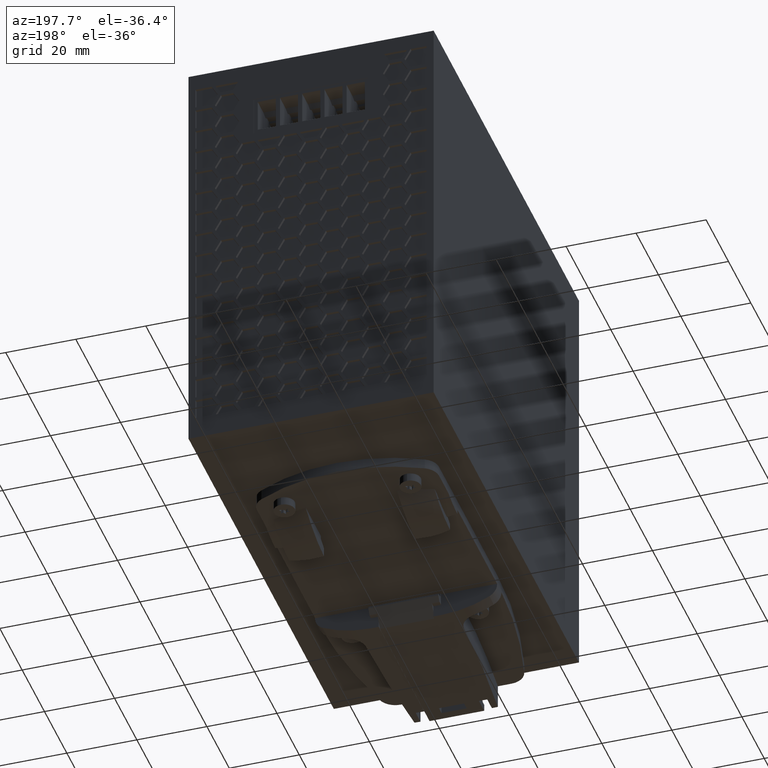
[diagram: clean part render]
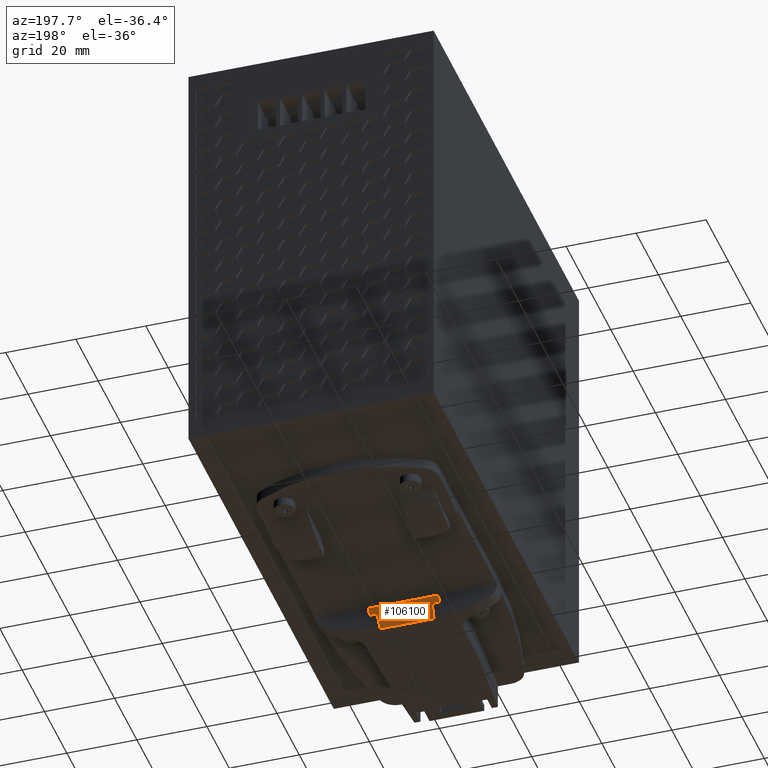
[diagram: same view with one face highlighted and labeled with its STEP entity id]
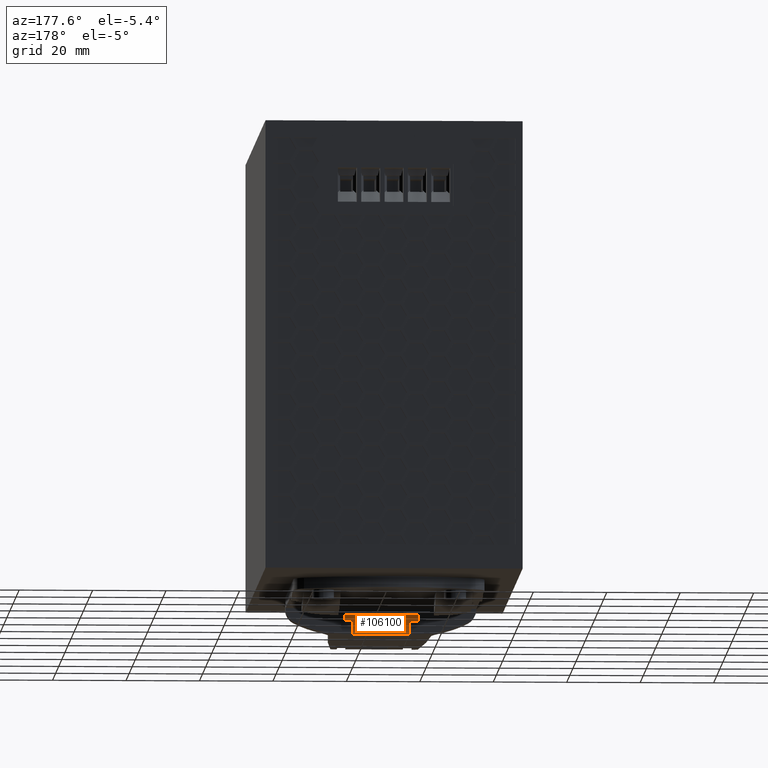
[diagram: same view with one face highlighted and labeled with its STEP entity id]
A machine part, auxiliary view. The second image highlights one B-rep face of the part: STEP entity #106100.
A second angle (auxiliary view) of the same face is appended — the face is thin or edge-on in the first view.
In plain terms, the highlighted planar face has unit normal (-0, 0.8059, -0.5921).
Its self-contained STEP definition (entity closure, byte-faithful):
#84610=CARTESIAN_POINT('',(27.2,-9.80000000000832,85.1992150856017));
#84620=VERTEX_POINT('',#84610);
#84650=CARTESIAN_POINT('',(27.2,0.,77.9992150855951));
#84660=DIRECTION('',(0.,0.805881812890923,-0.592076433960717));
#84670=VECTOR('',#84660,1.);
#84680=LINE('',#84650,#84670);
#84690=CARTESIAN_POINT('',(27.2,-8.29955848486365,84.0968498908014));
#84700=VERTEX_POINT('',#84690);
#84710=EDGE_CURVE('',#84620,#84700,#84680,.T.);
#100330=CARTESIAN_POINT('',(42.8,0.,77.9992150855951));
#100340=DIRECTION('',(0.,-0.805881812890923,0.592076433960717));
#100350=VECTOR('',#100340,1.);
#100360=LINE('',#100330,#100350);
#100370=CARTESIAN_POINT('',(42.8,-8.29955848486361,84.0968498908014));
#100380=VERTEX_POINT('',#100370);
#100390=CARTESIAN_POINT('',(42.8,-9.80000000000832,85.1992150856017));
#100400=VERTEX_POINT('',#100390);
#100410=EDGE_CURVE('',#100380,#100400,#100360,.T.);
#100920=CARTESIAN_POINT('',(25.,-6.45000000000833,82.7379905958056));
#100930=VERTEX_POINT('',#100920);
#100980=CARTESIAN_POINT('',(25.,60.8249999999917,33.3114599835575));
#100990=DIRECTION('',(0.,0.805881812890923,-0.592076433960717));
#101000=VECTOR('',#100990,1.);
#101010=LINE('',#100980,#101000);
#101020=CARTESIAN_POINT('',(25.,-4.90000000000831,81.5992150856014));
#101030=VERTEX_POINT('',#101020);
#101040=EDGE_CURVE('',#100930,#101030,#101010,.T.);
#105500=CARTESIAN_POINT('',(31.3,-7.79236111111929,83.7242150856015));
#105510=DIRECTION('',(-3.28668444660572E-17,-0.592076433960717,
-0.805881812890923));
#105520=DIRECTION('',(0.,-0.805881812890923,0.592076433960717));
#105530=AXIS2_PLACEMENT_3D('',#105500,#105510,#105520);
#105540=PLANE('',#105530);
#105550=CARTESIAN_POINT('',(42.8,0.,77.9992150855951));
#105560=DIRECTION('',(0.,-0.805881812890923,0.592076433960717));
#105570=VECTOR('',#105560,1.);
#105580=LINE('',#105550,#105570);
#105590=CARTESIAN_POINT('',(42.8,-6.45000000000834,82.7379905958056));
#105600=VERTEX_POINT('',#105590);
#105610=EDGE_CURVE('',#105600,#100380,#105580,.T.);
#105620=ORIENTED_EDGE('',*,*,#105610,.T.);
#105630=CARTESIAN_POINT('',(-1.,-6.45000000000833,82.7379905958056));
#105640=DIRECTION('',(-1.,0.,4.07837029454166E-17));
#105650=VECTOR('',#105640,1.);
#105660=LINE('',#105630,#105650);
#105670=CARTESIAN_POINT('',(45.,-6.45000000000834,82.7379905958056));
#105680=VERTEX_POINT('',#105670);
#105690=EDGE_CURVE('',#105680,#105600,#105660,.T.);
#105700=ORIENTED_EDGE('',*,*,#105690,.T.);
#105710=CARTESIAN_POINT('',(45.,60.8249999999917,33.3114599835575));
#105720=DIRECTION('',(0.,-0.805881812890923,0.592076433960717));
#105730=VECTOR('',#105720,1.);
#105740=LINE('',#105710,#105730);
#105750=CARTESIAN_POINT('',(45.,-4.90000000000832,81.5992150856014));
#105760=VERTEX_POINT('',#105750);
#105770=EDGE_CURVE('',#105760,#105680,#105740,.T.);
#105780=ORIENTED_EDGE('',*,*,#105770,.T.);
#105790=CARTESIAN_POINT('',(6.3,-4.9000000000083,81.5992150856014));
#105800=DIRECTION('',(-1.,5.55111512312578E-17,0.));
#105810=VECTOR('',#105800,1.);
#105820=LINE('',#105790,#105810);
#105830=EDGE_CURVE('',#105760,#101030,#105820,.T.);
#105840=ORIENTED_EDGE('',*,*,#105830,.F.);
#105850=ORIENTED_EDGE('',*,*,#101040,.T.);
#105860=CARTESIAN_POINT('',(-1.,-6.45000000000833,82.7379905958056));
#105870=DIRECTION('',(-1.,0.,4.07837029454166E-17));
#105880=VECTOR('',#105870,1.);
#105890=LINE('',#105860,#105880);
#105900=CARTESIAN_POINT('',(27.2,-6.45000000000833,82.7379905958056));
#105910=VERTEX_POINT('',#105900);
#105920=EDGE_CURVE('',#105910,#100930,#105890,.T.);
#105930=ORIENTED_EDGE('',*,*,#105920,.T.);
#105940=CARTESIAN_POINT('',(27.2,0.,77.9992150855951));
#105950=DIRECTION('',(0.,0.805881812890923,-0.592076433960717));
#105960=VECTOR('',#105950,1.);
#105970=LINE('',#105940,#105960);
#105980=EDGE_CURVE('',#84700,#105910,#105970,.T.);
#105990=ORIENTED_EDGE('',*,*,#105980,.T.);
#106000=ORIENTED_EDGE('',*,*,#84710,.T.);
#106010=CARTESIAN_POINT('',(-1.,-9.80000000000832,85.1992150856017));
#106020=DIRECTION('',(-1.,0.,4.07837029454166E-17));
#106030=VECTOR('',#106020,1.);
#106040=LINE('',#106010,#106030);
#106050=EDGE_CURVE('',#100400,#84620,#106040,.T.);
#106060=ORIENTED_EDGE('',*,*,#106050,.T.);
#106070=ORIENTED_EDGE('',*,*,#100410,.T.);
#106080=EDGE_LOOP('',(#106070,#106060,#106000,#105990,#105930,#105850,
#105840,#105780,#105700,#105620));
#106090=FACE_OUTER_BOUND('',#106080,.T.);
#106100=ADVANCED_FACE('',(#106090),#105540,.T.);